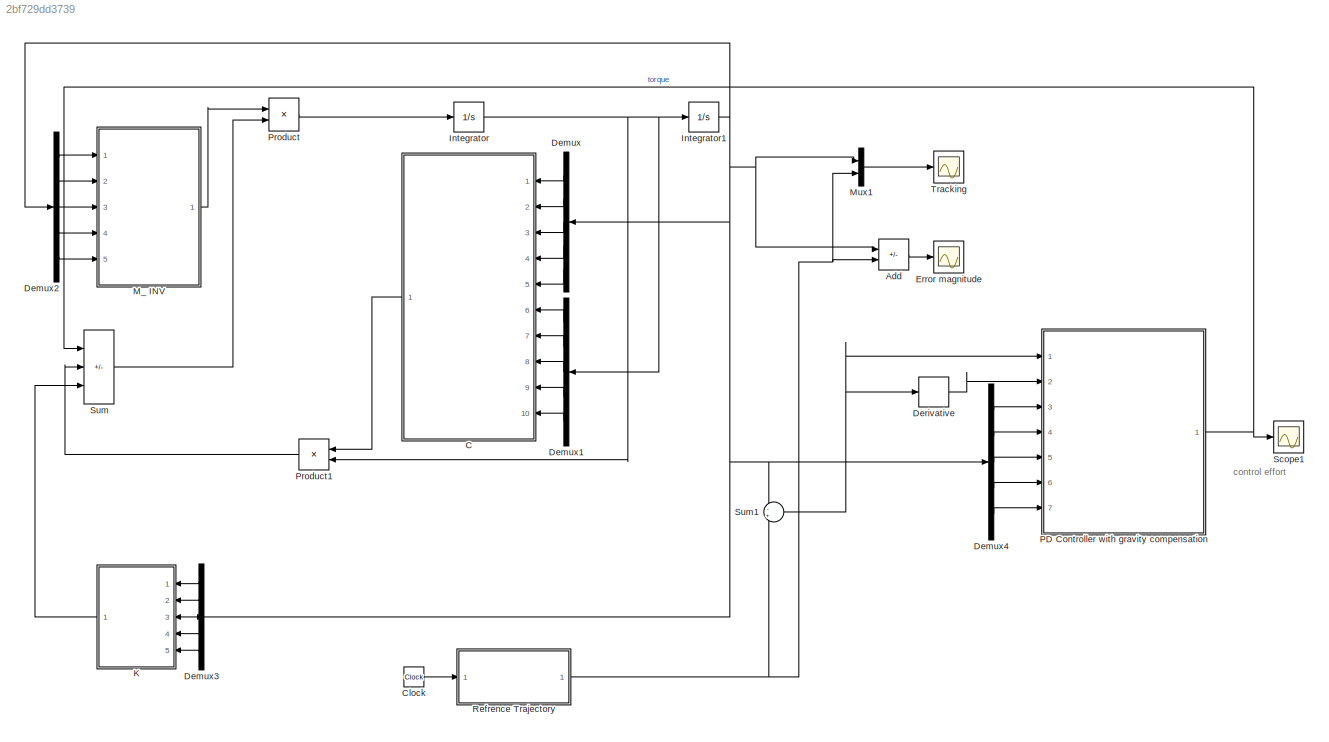
MODEL slx_2bf729dd3739
KIND model
CONFIG AbsTol = auto
CONFIG EnableMultiTasking = off
CONFIG FixedStep = auto
CONFIG MaxStep = auto
CONFIG MinStep = auto
CONFIG RelTol = 1e-3
CONFIG SampleTimeConstraint = Unconstrained
CONFIG SolverName = VariableStepAuto
CONFIG StartTime = 0.0
CONFIG StopTime = 5
BLOCK [Sum] Add
  IconShape = rectangular
  Inputs = -+
  Ports = [2, 1]
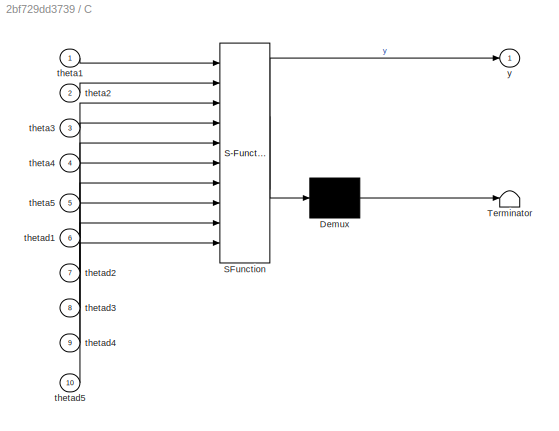
BLOCK [SubSystem] C
  ErrorFcn = Stateflow.Translate.translate
  NameLocation = top
  PermitHierarchicalResolution = ExplicitOnly
  Ports = [10, 1]
  RequestExecContextInheritance = off
  SFBlockType = MATLAB Function
  TreatAsAtomicUnit = on
BLOCK [Demux] C/ Demux 
  Outputs = 1
  Ports = [1, 1]
BLOCK [S-Function] C/ SFunction 
  EnableBusSupport = on
  FunctionName = sf_sfun
  PortCounts = [10 2]
  Ports = [10, 2]
  SFcnIsStateOwnerBlock = off
  SFunctionDeploymentMode = off
  Tag = Stateflow S-Function 1
BLOCK [Terminator] C/ Terminator 
BLOCK [Inport] C/theta1
BLOCK [Inport] C/theta2
  Port = 2
BLOCK [Inport] C/theta3
  Port = 3
BLOCK [Inport] C/theta4
  Port = 4
BLOCK [Inport] C/theta5
  Port = 5
BLOCK [Inport] C/thetad1
  Port = 6
BLOCK [Inport] C/thetad2
  Port = 7
BLOCK [Inport] C/thetad3
  Port = 8
BLOCK [Inport] C/thetad4
  Port = 9
BLOCK [Inport] C/thetad5
  Port = 10
BLOCK [Outport] C/y
BLOCK [Clock] Clock
  Decimation = 5
BLOCK [Demux] Demux
  NameLocation = top
  Outputs = 5
  Ports = [1, 5]
BLOCK [Demux] Demux1
  NameLocation = top
  Outputs = 5
  Ports = [1, 5]
BLOCK [Demux] Demux2
  Outputs = 5
  Ports = [1, 5]
BLOCK [Demux] Demux3
  NameLocation = top
  Outputs = 5
  Ports = [1, 5]
BLOCK [Demux] Demux4
  Outputs = 5
  Ports = [1, 5]
BLOCK [Derivative] Derivative
BLOCK [Scope] Error magnitude
  Floating = off
  NumInputPorts = 1
  Ports = [1]
  ScopeSpecificationString = Simulink.scopes.TimeScopeBlockCfg('CurrentConfiguration', extmgr.ConfigurationSet(extmgr.Configuration('Core','General UI',true,'FigureColor',[1 1 1]),extmgr.Configuration('Core','Source UI',true),extmgr.Configuration('Sources','WiredSimulink',true,'DataLoggingVariableName','ScopeData2'),extmgr.Configuration('Visuals','Time Domain',true,'SerializedDisplays',{struct('MinYLimReal','-0.12964','MaxYLi...<+2630ch>
BLOCK [Integrator] Integrator
  IgnoreLimit = on
  Ports = [1, 1]
BLOCK [Integrator] Integrator1
  IgnoreLimit = on
  Ports = [1, 1]
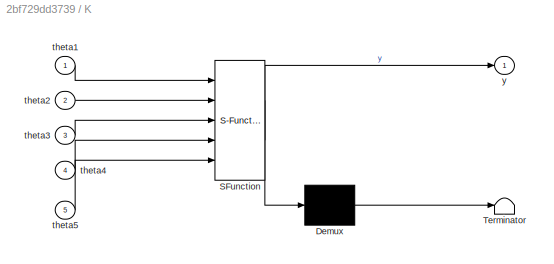
BLOCK [SubSystem] K
  ErrorFcn = Stateflow.Translate.translate
  NameLocation = top
  PermitHierarchicalResolution = ExplicitOnly
  Ports = [5, 1]
  RequestExecContextInheritance = off
  SFBlockType = MATLAB Function
  TreatAsAtomicUnit = on
BLOCK [Demux] K/ Demux 
  Outputs = 1
  Ports = [1, 1]
BLOCK [S-Function] K/ SFunction 
  EnableBusSupport = on
  FunctionName = sf_sfun
  PortCounts = [5 2]
  Ports = [5, 2]
  SFcnIsStateOwnerBlock = off
  SFunctionDeploymentMode = off
  Tag = Stateflow S-Function 3
BLOCK [Terminator] K/ Terminator 
BLOCK [Inport] K/theta1
BLOCK [Inport] K/theta2
  Port = 2
BLOCK [Inport] K/theta3
  Port = 3
BLOCK [Inport] K/theta4
  Port = 4
BLOCK [Inport] K/theta5
  Port = 5
BLOCK [Outport] K/y
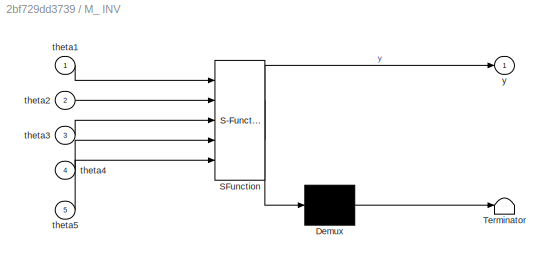
BLOCK [SubSystem] M_ INV
  ErrorFcn = Stateflow.Translate.translate
  PermitHierarchicalResolution = ExplicitOnly
  Ports = [5, 1]
  RequestExecContextInheritance = off
  SFBlockType = MATLAB Function
  TreatAsAtomicUnit = on
BLOCK [Demux] M_ INV/ Demux 
  Outputs = 1
  Ports = [1, 1]
BLOCK [S-Function] M_ INV/ SFunction 
  EnableBusSupport = on
  FunctionName = sf_sfun
  PortCounts = [5 2]
  Ports = [5, 2]
  SFcnIsStateOwnerBlock = off
  SFunctionDeploymentMode = off
  Tag = Stateflow S-Function 2
BLOCK [Terminator] M_ INV/ Terminator 
BLOCK [Inport] M_ INV/theta1
BLOCK [Inport] M_ INV/theta2
  Port = 2
BLOCK [Inport] M_ INV/theta3
  Port = 3
BLOCK [Inport] M_ INV/theta4
  Port = 4
BLOCK [Inport] M_ INV/theta5
  Port = 5
BLOCK [Outport] M_ INV/y
BLOCK [Mux] Mux1
  DisplayOption = bar
  Inputs = 2
  Ports = [2, 1]
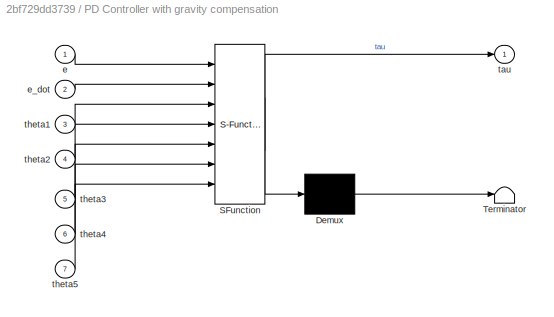
BLOCK [SubSystem] PD Controller with gravity compensation
  ErrorFcn = Stateflow.Translate.translate
  PermitHierarchicalResolution = ExplicitOnly
  Ports = [7, 1]
  RequestExecContextInheritance = off
  SFBlockType = MATLAB Function
  TreatAsAtomicUnit = on
BLOCK [Demux] PD Controller with gravity compensation/ Demux 
  Outputs = 1
  Ports = [1, 1]
BLOCK [S-Function] PD Controller with gravity compensation/ SFunction 
  EnableBusSupport = on
  FunctionName = sf_sfun
  PortCounts = [7 2]
  Ports = [7, 2]
  SFcnIsStateOwnerBlock = off
  SFunctionDeploymentMode = off
  Tag = Stateflow S-Function 4
BLOCK [Terminator] PD Controller with gravity compensation/ Terminator 
BLOCK [Inport] PD Controller with gravity compensation/e
BLOCK [Inport] PD Controller with gravity compensation/e_dot
  Port = 2
BLOCK [Outport] PD Controller with gravity compensation/tau
  VectorParamsAs1DForOutWhenUnconnected = off
BLOCK [Inport] PD Controller with gravity compensation/theta1
  Port = 3
BLOCK [Inport] PD Controller with gravity compensation/theta2
  Port = 4
BLOCK [Inport] PD Controller with gravity compensation/theta3
  Port = 5
BLOCK [Inport] PD Controller with gravity compensation/theta4
  Port = 6
BLOCK [Inport] PD Controller with gravity compensation/theta5
  Port = 7
BLOCK [Product] Product
  Multiplication = Matrix(*)
  Ports = [2, 1]
BLOCK [Product] Product1
  Multiplication = Matrix(*)
  NameLocation = top
  Ports = [2, 1]
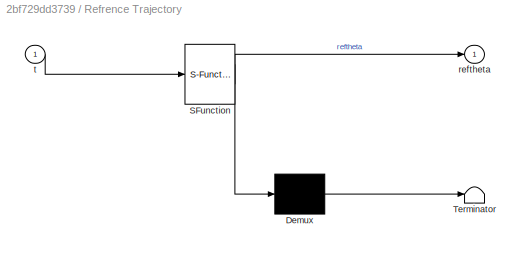
BLOCK [SubSystem] Refrence Trajectory
  ErrorFcn = Stateflow.Translate.translate
  PermitHierarchicalResolution = ExplicitOnly
  Ports = [1, 1]
  RequestExecContextInheritance = off
  SFBlockType = MATLAB Function
  TreatAsAtomicUnit = on
BLOCK [Demux] Refrence Trajectory/ Demux 
  Outputs = 1
  Ports = [1, 1]
BLOCK [S-Function] Refrence Trajectory/ SFunction 
  EnableBusSupport = on
  FunctionName = sf_sfun
  PortCounts = [1 2]
  Ports = [1, 2]
  SFcnIsStateOwnerBlock = off
  SFunctionDeploymentMode = off
  Tag = Stateflow S-Function 5
BLOCK [Terminator] Refrence Trajectory/ Terminator 
BLOCK [Outport] Refrence Trajectory/reftheta
  VectorParamsAs1DForOutWhenUnconnected = off
BLOCK [Inport] Refrence Trajectory/t
BLOCK [Scope] Scope1
  Floating = off
  NumInputPorts = 1
  Ports = [1]
  ScopeSpecificationString = Simulink.scopes.TimeScopeBlockCfg('CurrentConfiguration', extmgr.ConfigurationSet(extmgr.Configuration('Core','General UI',true,'FigureColor',[1 1 1]),extmgr.Configuration('Core','Source UI',true),extmgr.Configuration('Sources','WiredSimulink',true,'DataLoggingVariableName','ScopeData1'),extmgr.Configuration('Visuals','Time Domain',true,'SerializedDisplays',{struct('MinYLimReal','-25.12708','MaxYL...<+2678ch>
BLOCK [Sum] Sum
  IconShape = rectangular
  Inputs = +--
  Ports = [3, 1]
BLOCK [Sum] Sum1
  Inputs = -+
  Ports = [2, 1]
BLOCK [Scope] Tracking
  Floating = off
  NumInputPorts = 1
  Ports = [1]
  ScopeSpecificationString = Simulink.scopes.TimeScopeBlockCfg('CurrentConfiguration', extmgr.ConfigurationSet(extmgr.Configuration('Core','General UI',true,'FigureColor',[1 1 1]),extmgr.Configuration('Core','Source UI',true),extmgr.Configuration('Sources','WiredSimulink',true),extmgr.Configuration('Visuals','Time Domain',true,'SerializedDisplays',{struct('MinYLimReal','-0.12552','MaxYLimReal','1.12964','YLabelReal','Angle(ra...<+2786ch>
ANNOTATION (root): control effort
LINE Add:1 -> Error magnitude:1
LINE C:1 -> Product1:1
LINE Clock:1 -> Refrence Trajectory:1
LINE Demux1:1 -> C:6
LINE Demux1:2 -> C:7
LINE Demux1:3 -> C:8
LINE Demux1:4 -> C:9
LINE Demux1:5 -> C:10
LINE Demux2:1 -> M_ INV:1
LINE Demux2:2 -> M_ INV:2
LINE Demux2:3 -> M_ INV:3
LINE Demux2:4 -> M_ INV:4
LINE Demux2:5 -> M_ INV:5
LINE Demux3:1 -> K:1
LINE Demux3:2 -> K:2
LINE Demux3:3 -> K:3
LINE Demux3:4 -> K:4
LINE Demux3:5 -> K:5
LINE Demux4:1 -> PD Controller with gravity compensation:3
LINE Demux4:2 -> PD Controller with gravity compensation:4
LINE Demux4:3 -> PD Controller with gravity compensation:5
LINE Demux4:4 -> PD Controller with gravity compensation:6
LINE Demux4:5 -> PD Controller with gravity compensation:7
LINE Demux:1 -> C:1
LINE Demux:2 -> C:2
LINE Demux:3 -> C:3
LINE Demux:4 -> C:4
LINE Demux:5 -> C:5
LINE Derivative:1 -> PD Controller with gravity compensation:2
NET Integrator1:1 -> Add:1, Demux2:1, Demux3:1, Demux4:1, Demux:1, Mux1:1, Sum1:1
NET Integrator:1 -> Demux1:1, Integrator1:1, Product1:2
LINE K:1 -> Sum:3
LINE M_ INV:1 -> Product:1
LINE Mux1:1 -> Tracking:1
NET PD Controller with gravity compensation:1 -> Scope1:1, Sum:1
LINE Product1:1 -> Sum:2
LINE Product:1 -> Integrator:1
NET Refrence Trajectory:1 -> Add:2, Mux1:2, Sum1:2
NET Sum1:1 -> Derivative:1, PD Controller with gravity compensation:1
LINE Sum:1 -> Product:2
note: NET lines group one-source signal fan-out (src -> all destinations, sorted); 1:1 wires keep LINE
CHART C states=1 transitions=1
  STATE_LABEL 'eML_blk_kernel()'
  STATE_LABEL 'SCRIPT:\nfunction y = C(theta1,theta2,theta3,theta4,theta5,thetad1,thetad2,thetad3,thetad4,thetad5)\nC=zeros(5);\n\nC(1,1) = 0.0000662161*thetad5 - 0.000132432*thetad5*cos(theta5)^2 - 0.0089*thetad3*cos(theta3) + 0.06345*thetad4*cos(theta4) - 0.91965*thetad3*sin(theta3) + 0.4185*thetad4*sin(theta4) + 0.06345*thetad3*cos(theta3)*cos(theta4) + 0.06345*thetad4*cos(theta3)*cos(theta4) + 0.4185*thetad3*cos...<+3608ch>'
CHART M_ INV states=1 transitions=1
  STATE_LABEL 'eML_blk_kernel()'
  STATE_LABEL 'SCRIPT:\nfunction y = M(theta1,theta2,theta3,theta4,theta5)\nM=zeros(5);\n\nM(1,1) = 1.8393*cos(theta3) - 0.837*cos(theta4) - 0.0178*sin(theta3) + 0.1269*sin(theta4) - 0.837*cos(theta3)*cos(theta4) + 0.1269*cos(theta3)*sin(theta4) + 0.1269*cos(theta4)*sin(theta3) - 0.000132432*cos(theta5)*sin(theta5) + 0.837*sin(theta3)*sin(theta4) - 0.00290548*cos(theta5)^2 + 3.61919;\nM(1,2) = 0.91965*cos(theta3) - 0...<+2722ch>'
CHART K states=1 transitions=1
  STATE_LABEL 'eML_blk_kernel()'
  STATE_LABEL 'SCRIPT:\nfunction y = G(theta1,theta2,theta3,theta4,theta5)\nG=zeros(5,1);\n\nG(1) = 0.0;\nG(2) = 24.8595*cos(theta2) - 0.260946*sin(theta2) + 18.0435*cos(theta2)*cos(theta3) - 0.174618*cos(theta2)*sin(theta3) - 0.174618*cos(theta3)*sin(theta2) - 18.0435*sin(theta2)*sin(theta3) + 8.21097*cos(theta2)*sin(theta3)*sin(theta4) + 8.21097*cos(theta3)*sin(theta2)*sin(theta4) + 8.21097*cos(theta4)*sin(theta2)*...<+1150ch>'
CHART PD Controller with gravity compensation states=1 transitions=1
  STATE_LABEL 'eML_blk_kernel()'
  STATE_LABEL 'SCRIPT:\nfunction tau = PD_controller(e,e_dot,theta1,theta2,theta3,theta4,theta5)\nkp = [70   0     0     0     0     ;\n     0     70    0     0     0     ;\n     0     0     70   0     0     ;\n     0     0     0    50   0     ;\n     0     0     0     0     50  ];\n\nkd =[40     0     0     0     0     ;\n     0    40    0     0     0     ;\n     0     0    30   0     0     ;\n     0     0     0     20   ...<+1553ch>'
CHART Refrence Trajectory states=1 transitions=1
  STATE_LABEL 'eML_blk_kernel()'
  STATE_LABEL "SCRIPT:\nfunction reftheta  = Traj(t)\n%reftheta = [0.5,0.5,0.5,0.5,0.5]';\nreftheta = [1,1,1,1,1]';\n%reftheta = [sin(0.5*t),sin(0.75*t),sin(t),sin(2.5*t),sin(3*t)]';\n%reftheta = [sin(2*t),sin(2*t),sin(2*t),sin(2*t),sin(2*t)]';\nend\n\n\n% function reftheta = Traj(t)\n%     % Define joint angles using smooth transitions\n%     theta1 = 90 * smoothStep(t, 2, 3) - 90 * smoothStep(t, 4.1, 5);\n%     theta2 = -...<+721ch>"
CHART  states=0 transitions=0
CHART  states=0 transitions=0
CHART  states=0 transitions=0
CHART  states=0 transitions=0
CHART  states=0 transitions=0
